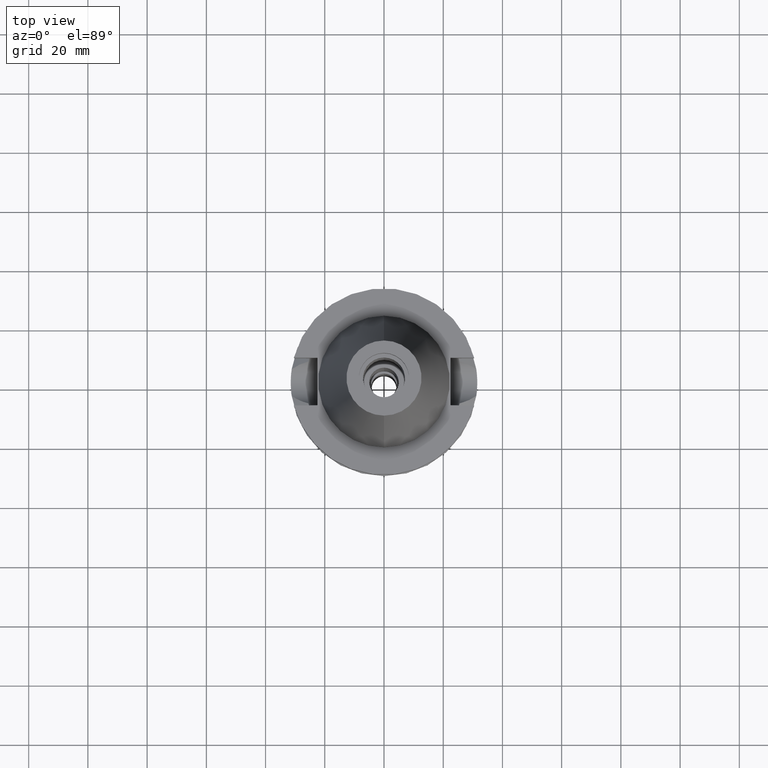
[diagram: clean part render]
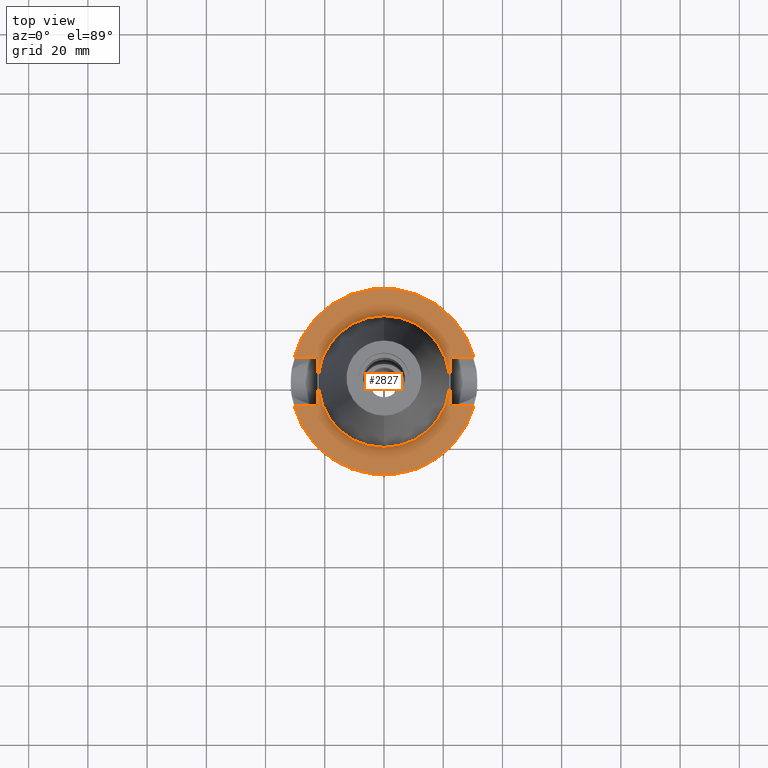
[diagram: same view with one face highlighted and labeled with its STEP entity id]
A machine part, top view. The second image highlights one B-rep face of the part: STEP entity #2827.
In plain terms, the highlighted planar face has unit normal (0, 0, -1).
Its self-contained STEP definition (entity closure, byte-faithful):
#21 = EDGE_CURVE ( 'NONE', #1878, #63, #283, .T. ) ;
#63 = VERTEX_POINT ( 'NONE', #1720 ) ;
#117 = VERTEX_POINT ( 'NONE', #2615 ) ;
#179 = DIRECTION ( 'NONE',  ( 0.0000000000000000000, 0.0000000000000000000, 1.000000000000000000 ) ) ;
#180 = EDGE_CURVE ( 'NONE', #3187, #117, #758, .T. ) ;
#205 = CARTESIAN_POINT ( 'NONE',  ( -22.50000000000000000, -8.050000000000000711, -2.000000000000000000 ) ) ;
#279 = CARTESIAN_POINT ( 'NONE',  ( 0.0000000000000000000, 1.200153863163999924E-14, -2.000000000000000000 ) ) ;
#283 = CIRCLE ( 'NONE', #3166, 31.50000000000000000 ) ;
#292 = CARTESIAN_POINT ( 'NONE',  ( 30.45402272279000044, -8.050000000000000711, -2.000000000000000000 ) ) ;
#301 = EDGE_CURVE ( 'NONE', #948, #1878, #1099, .T. ) ;
#309 = DIRECTION ( 'NONE',  ( 0.0000000000000000000, 0.0000000000000000000, -1.000000000000000000 ) ) ;
#479 = LINE ( 'NONE', #3631, #2385 ) ;
#489 = ORIENTED_EDGE ( 'NONE', *, *, #2669, .T. ) ;
#498 = EDGE_CURVE ( 'NONE', #3433, #2151, #581, .T. ) ;
#509 = VECTOR ( 'NONE', #1043, 1000.000000000000000 ) ;
#545 = DIRECTION ( 'NONE',  ( 1.000000000000000000, 3.573249715389999860E-14, 0.0000000000000000000 ) ) ;
#552 = DIRECTION ( 'NONE',  ( 0.0000000000000000000, -1.000000000000000000, 0.0000000000000000000 ) ) ;
#573 = AXIS2_PLACEMENT_3D ( 'NONE', #1485, #3111, #1429 ) ;
#581 = LINE ( 'NONE', #1712, #1156 ) ;
#667 = ORIENTED_EDGE ( 'NONE', *, *, #498, .F. ) ;
#675 = EDGE_CURVE ( 'NONE', #2211, #3433, #1079, .T. ) ;
#682 = CARTESIAN_POINT ( 'NONE',  ( 22.50000000000000000, 8.050000000000000711, -2.000000000000000000 ) ) ;
#758 = CIRCLE ( 'NONE', #1700, 22.22500000000000142 ) ;
#767 = ORIENTED_EDGE ( 'NONE', *, *, #21, .F. ) ;
#948 = VERTEX_POINT ( 'NONE', #1814 ) ;
#960 = CARTESIAN_POINT ( 'NONE',  ( 30.45402272279000044, 8.050000000000000711, -2.000000000000000000 ) ) ;
#972 = VERTEX_POINT ( 'NONE', #960 ) ;
#1025 = CARTESIAN_POINT ( 'NONE',  ( -30.45402272279000044, 8.050000000000000711, -2.000000000000000000 ) ) ;
#1037 = DIRECTION ( 'NONE',  ( 1.000000000000000000, -3.506251283225999947E-14, 0.0000000000000000000 ) ) ;
#1043 = DIRECTION ( 'NONE',  ( 0.0000000000000000000, 1.000000000000000000, 0.0000000000000000000 ) ) ;
#1079 = LINE ( 'NONE', #205, #509 ) ;
#1099 = LINE ( 'NONE', #3076, #3108 ) ;
#1156 = VECTOR ( 'NONE', #2833, 1000.000000000000000 ) ;
#1170 = VECTOR ( 'NONE', #3637, 1000.000000000000000 ) ;
#1362 = DIRECTION ( 'NONE',  ( 0.0000000000000000000, 0.0000000000000000000, -1.000000000000000000 ) ) ;
#1429 = DIRECTION ( 'NONE',  ( 0.0000000000000000000, 1.000000000000000000, 0.0000000000000000000 ) ) ;
#1432 = DIRECTION ( 'NONE',  ( 0.0000000000000000000, -1.000000000000000000, 0.0000000000000000000 ) ) ;
#1485 = CARTESIAN_POINT ( 'NONE',  ( 0.0000000000000000000, 2.162971176654000071E-14, -2.000000000000000000 ) ) ;
#1486 = EDGE_LOOP ( 'NONE', ( #3459, #767, #2389, #1734, #489, #3627, #667, #2410 ) ) ;
#1533 = CARTESIAN_POINT ( 'NONE',  ( 0.0000000000000000000, 2.162971176654000071E-14, -2.000000000000000000 ) ) ;
#1567 = EDGE_LOOP ( 'NONE', ( #2919, #2485 ) ) ;
#1573 = LINE ( 'NONE', #682, #2464 ) ;
#1575 = CIRCLE ( 'NONE', #573, 31.50000000000000000 ) ;
#1700 = AXIS2_PLACEMENT_3D ( 'NONE', #1938, #3036, #3277 ) ;
#1706 = AXIS2_PLACEMENT_3D ( 'NONE', #279, #1362, #552 ) ;
#1712 = CARTESIAN_POINT ( 'NONE',  ( -22.50000000000000000, 8.050000000000000711, -2.000000000000000000 ) ) ;
#1718 = CARTESIAN_POINT ( 'NONE',  ( 0.0000000000000000000, 2.162971176654000071E-14, -2.000000000000000000 ) ) ;
#1720 = CARTESIAN_POINT ( 'NONE',  ( -30.45402272279000044, -8.050000000000000711, -2.000000000000000000 ) ) ;
#1734 = ORIENTED_EDGE ( 'NONE', *, *, #3202, .F. ) ;
#1811 = EDGE_CURVE ( 'NONE', #2151, #972, #1575, .T. ) ;
#1814 = CARTESIAN_POINT ( 'NONE',  ( 22.50000000000000000, -8.050000000000000711, -2.000000000000000000 ) ) ;
#1878 = VERTEX_POINT ( 'NONE', #292 ) ;
#1899 = CARTESIAN_POINT ( 'NONE',  ( -22.50000000000000000, -8.050000000000000711, -2.000000000000000000 ) ) ;
#1938 = CARTESIAN_POINT ( 'NONE',  ( 0.0000000000000000000, 2.162971176654000071E-14, -2.000000000000000000 ) ) ;
#1977 = VERTEX_POINT ( 'NONE', #2569 ) ;
#2151 = VERTEX_POINT ( 'NONE', #1025 ) ;
#2201 = FACE_BOUND ( 'NONE', #1567, .T. ) ;
#2211 = VERTEX_POINT ( 'NONE', #1899 ) ;
#2222 = LINE ( 'NONE', #3338, #1170 ) ;
#2317 = CIRCLE ( 'NONE', #2965, 22.22500000000000142 ) ;
#2385 = VECTOR ( 'NONE', #3023, 1000.000000000000000 ) ;
#2389 = ORIENTED_EDGE ( 'NONE', *, *, #301, .F. ) ;
#2410 = ORIENTED_EDGE ( 'NONE', *, *, #675, .F. ) ;
#2464 = VECTOR ( 'NONE', #1037, 1000.000000000000000 ) ;
#2485 = ORIENTED_EDGE ( 'NONE', *, *, #3059, .F. ) ;
#2569 = CARTESIAN_POINT ( 'NONE',  ( 22.50000000000000000, 8.050000000000000711, -2.000000000000000000 ) ) ;
#2615 = CARTESIAN_POINT ( 'NONE',  ( 0.0000000000000000000, -22.22500000000000142, -2.000000000000000000 ) ) ;
#2633 = CARTESIAN_POINT ( 'NONE',  ( 0.0000000000000000000, 22.22500000000000142, -2.000000000000000000 ) ) ;
#2669 = EDGE_CURVE ( 'NONE', #1977, #972, #1573, .T. ) ;
#2808 = FACE_OUTER_BOUND ( 'NONE', #1486, .T. ) ;
#2827 = ADVANCED_FACE ( 'NONE', ( #2808, #2201 ), #3379, .F. ) ;
#2833 = DIRECTION ( 'NONE',  ( -1.000000000000000000, -3.550916904668000126E-14, 0.0000000000000000000 ) ) ;
#2902 = EDGE_CURVE ( 'NONE', #2211, #63, #2222, .T. ) ;
#2919 = ORIENTED_EDGE ( 'NONE', *, *, #180, .F. ) ;
#2965 = AXIS2_PLACEMENT_3D ( 'NONE', #1533, #179, #3484 ) ;
#3023 = DIRECTION ( 'NONE',  ( 0.0000000000000000000, -1.000000000000000000, 0.0000000000000000000 ) ) ;
#3036 = DIRECTION ( 'NONE',  ( 0.0000000000000000000, 0.0000000000000000000, 1.000000000000000000 ) ) ;
#3051 = CARTESIAN_POINT ( 'NONE',  ( -22.50000000000000000, 8.050000000000000711, -2.000000000000000000 ) ) ;
#3059 = EDGE_CURVE ( 'NONE', #117, #3187, #2317, .T. ) ;
#3076 = CARTESIAN_POINT ( 'NONE',  ( 22.50000000000000000, -8.050000000000000711, -2.000000000000000000 ) ) ;
#3108 = VECTOR ( 'NONE', #545, 1000.000000000000000 ) ;
#3111 = DIRECTION ( 'NONE',  ( 0.0000000000000000000, 0.0000000000000000000, -1.000000000000000000 ) ) ;
#3166 = AXIS2_PLACEMENT_3D ( 'NONE', #1718, #309, #1432 ) ;
#3187 = VERTEX_POINT ( 'NONE', #2633 ) ;
#3202 = EDGE_CURVE ( 'NONE', #1977, #948, #479, .T. ) ;
#3277 = DIRECTION ( 'NONE',  ( 0.0000000000000000000, 1.000000000000000000, 0.0000000000000000000 ) ) ;
#3338 = CARTESIAN_POINT ( 'NONE',  ( -22.50000000000000000, -8.050000000000000711, -2.000000000000000000 ) ) ;
#3379 = PLANE ( 'NONE',  #1706 ) ;
#3433 = VERTEX_POINT ( 'NONE', #3051 ) ;
#3459 = ORIENTED_EDGE ( 'NONE', *, *, #2902, .T. ) ;
#3484 = DIRECTION ( 'NONE',  ( 0.0000000000000000000, -1.000000000000000000, 0.0000000000000000000 ) ) ;
#3627 = ORIENTED_EDGE ( 'NONE', *, *, #1811, .F. ) ;
#3631 = CARTESIAN_POINT ( 'NONE',  ( 22.50000000000000000, 8.050000000000000711, -2.000000000000000000 ) ) ;
#3637 = DIRECTION ( 'NONE',  ( -1.000000000000000000, 3.550916904668000126E-14, 0.0000000000000000000 ) ) ;